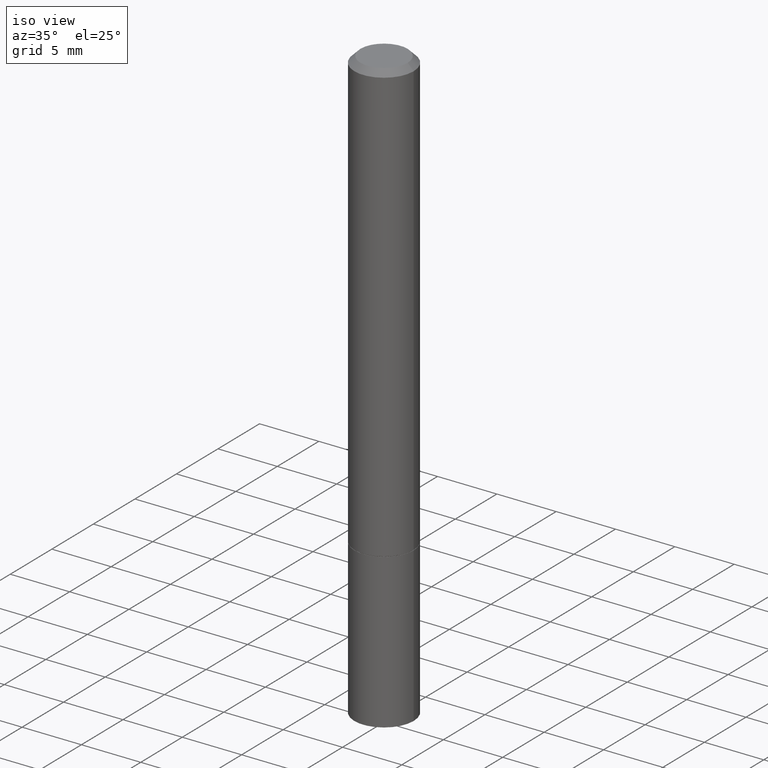
[diagram: clean part render]
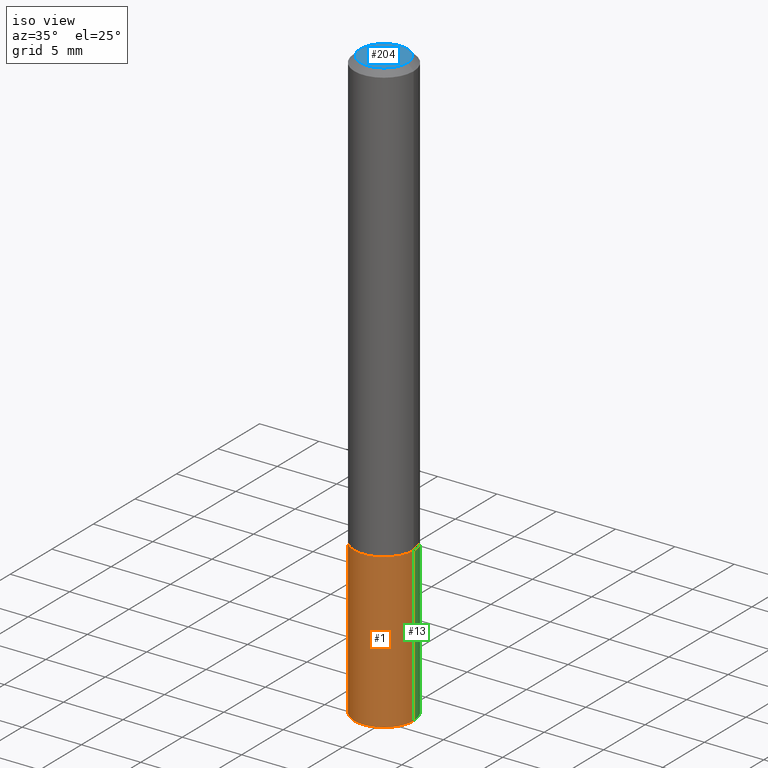
[diagram: same view with three faces highlighted in distinct colors, each labeled with its STEP entity id]
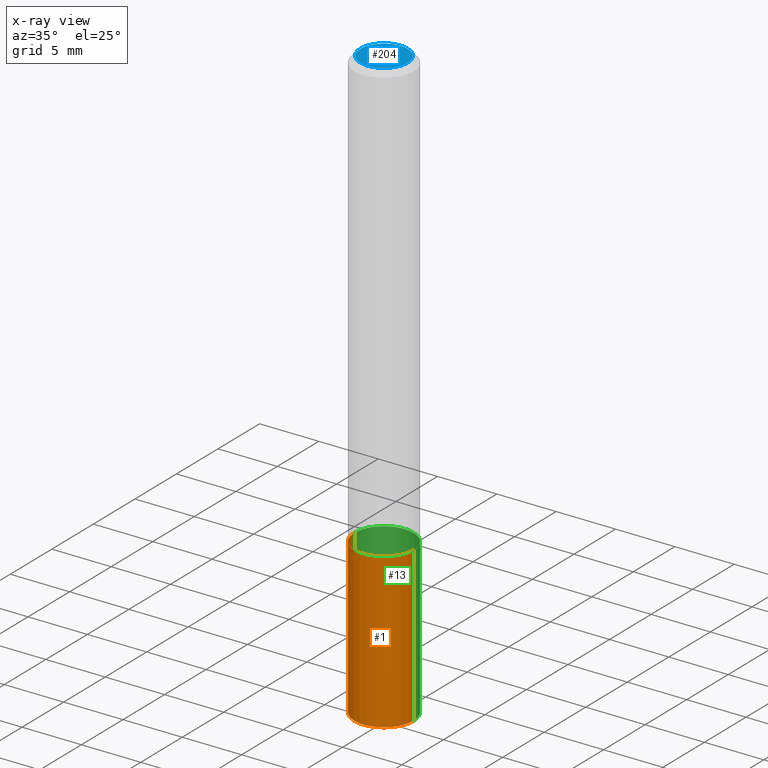
[diagram: x-ray of the same camera — body ghosted, the three highlighted faces saturated]
A machine part, iso view with three faces highlighted in distinct colors.
The next image is the same camera in x-ray (body ghosted, the three faces saturated) — at least one of them is partly hidden behind the body in this view.
Their STEP definitions:

[orange] entity #1 — the highlighted cylindrical surface (edge-blend (fillet) strip) has radius 2.5006 mm, axis along (-0, 0, 1).
#1 = ADVANCED_FACE ( 'NONE', ( #22 ), #363, .T. ) ;
#3 = CARTESIAN_POINT ( 'NONE',  ( 3.562314409969888915E-29, -5.086040866292811234E-15, -1.456700000000000106 ) ) ;
#8 = EDGE_CURVE ( 'NONE', #342, #327, #144, .T. ) ;
#14 = CARTESIAN_POINT ( 'NONE',  ( -0.09844999999999999585, 6.995293233558186035E-16, -4.842691596355954042E-30 ) ) ;
#20 = CARTESIAN_POINT ( 'NONE',  ( 0.09844999999999999585, -7.560453691130944267E-15, -1.968500000000000139 ) ) ;
#22 = FACE_OUTER_BOUND ( 'NONE', #283, .T. ) ;
#28 = AXIS2_PLACEMENT_3D ( 'NONE', #3, #280, #120 ) ;
#33 = AXIS2_PLACEMENT_3D ( 'NONE', #268, #239, #134 ) ;
#49 = VERTEX_POINT ( 'NONE', #123 ) ;
#69 = ORIENTED_EDGE ( 'NONE', *, *, #8, .T. ) ;
#88 = ORIENTED_EDGE ( 'NONE', *, *, #361, .F. ) ;
#116 = ORIENTED_EDGE ( 'NONE', *, *, #255, .T. ) ;
#120 = DIRECTION ( 'NONE',  ( 1.000000000000000000, -6.982962677686265922E-15, 0.000000000000000000 ) ) ;
#123 = CARTESIAN_POINT ( 'NONE',  ( -0.09844999999999999585, -5.279981617546952572E-15, -1.456700000000000106 ) ) ;
#134 = DIRECTION ( 'NONE',  ( 1.000000000000000000, -6.982962677686265922E-15, 0.000000000000000000 ) ) ;
#139 = VECTOR ( 'NONE', #187, 39.37007874015748143 ) ;
#143 = DIRECTION ( 'NONE',  ( -2.445468806185136597E-29, 3.491481338843145583E-15, 1.000000000000000000 ) ) ;
#144 = LINE ( 'NONE', #215, #139 ) ;
#163 = CARTESIAN_POINT ( 'NONE',  ( 0.09844999999999999585, -5.773513541911023795E-15, -1.456700000000000106 ) ) ;
#167 = CIRCLE ( 'NONE', #28, 0.09844999999999999585 ) ;
#175 = CIRCLE ( 'NONE', #33, 0.09844999999999999585 ) ;
#187 = DIRECTION ( 'NONE',  ( -2.445468806185136877E-29, 3.491481338843145188E-15, 1.000000000000000000 ) ) ;
#203 = LINE ( 'NONE', #14, #243 ) ;
#207 = VERTEX_POINT ( 'NONE', #325 ) ;
#215 = CARTESIAN_POINT ( 'NONE',  ( 0.09844999999999999585, -6.874726756182129545E-16, 4.800596035771099214E-30 ) ) ;
#239 = DIRECTION ( 'NONE',  ( -2.445468806185136597E-29, 3.491481338843145583E-15, 1.000000000000000000 ) ) ;
#243 = VECTOR ( 'NONE', #365, 39.37007874015748143 ) ;
#255 = EDGE_CURVE ( 'NONE', #207, #342, #175, .T. ) ;
#260 = AXIS2_PLACEMENT_3D ( 'NONE', #364, #143, #311 ) ;
#268 = CARTESIAN_POINT ( 'NONE',  ( 4.813905344975441835E-29, -6.872981015512731707E-15, -1.968500000000000139 ) ) ;
#280 = DIRECTION ( 'NONE',  ( -2.445468806185136597E-29, 3.491481338843145583E-15, 1.000000000000000000 ) ) ;
#281 = EDGE_CURVE ( 'NONE', #207, #49, #203, .T. ) ;
#283 = EDGE_LOOP ( 'NONE', ( #308, #116, #69, #88 ) ) ;
#308 = ORIENTED_EDGE ( 'NONE', *, *, #281, .F. ) ;
#311 = DIRECTION ( 'NONE',  ( 1.000000000000000000, -6.982962677686266711E-15, 4.876176775795936353E-29 ) ) ;
#325 = CARTESIAN_POINT ( 'NONE',  ( -0.09844999999999999585, -5.279981617546952572E-15, -1.968500000000000139 ) ) ;
#327 = VERTEX_POINT ( 'NONE', #163 ) ;
#342 = VERTEX_POINT ( 'NONE', #20 ) ;
#361 = EDGE_CURVE ( 'NONE', #49, #327, #167, .T. ) ;
#363 = CYLINDRICAL_SURFACE ( 'NONE', #260, 0.09844999999999999585 ) ;
#364 = CARTESIAN_POINT ( 'NONE',  ( 0.000000000000000000, 0.000000000000000000, 0.000000000000000000 ) ) ;
#365 = DIRECTION ( 'NONE',  ( -2.445468806185136877E-29, 3.491481338843145188E-15, 1.000000000000000000 ) ) ;

[blue] entity #204 — the highlighted planar face has unit normal (0, -0, -1).
#10 = CARTESIAN_POINT ( 'NONE',  ( 5.478134220644863581E-16, 0.07844999999999982543, -2.739067110322441651E-16 ) ) ;
#26 = VERTEX_POINT ( 'NONE', #153 ) ;
#40 = CARTESIAN_POINT ( 'NONE',  ( 0.000000000000000000, 0.000000000000000000, 0.000000000000000000 ) ) ;
#64 = AXIS2_PLACEMENT_3D ( 'NONE', #10, #333, #318 ) ;
#71 = CIRCLE ( 'NONE', #285, 0.07844999999999982543 ) ;
#79 = DIRECTION ( 'NONE',  ( -2.445468806185136597E-29, 3.491481338843145583E-15, 1.000000000000000000 ) ) ;
#109 = EDGE_LOOP ( 'NONE', ( #224, #330 ) ) ;
#111 = VERTEX_POINT ( 'NONE', #343 ) ;
#136 = FACE_OUTER_BOUND ( 'NONE', #109, .T. ) ;
#153 = CARTESIAN_POINT ( 'NONE',  ( -0.07844999999999982543, 5.827282354529176128E-16, -3.953055038153092165E-30 ) ) ;
#156 = CARTESIAN_POINT ( 'NONE',  ( 0.000000000000000000, 0.000000000000000000, 0.000000000000000000 ) ) ;
#176 = PLANE ( 'NONE',  #64 ) ;
#204 = ADVANCED_FACE ( 'NONE', ( #136 ), #176, .F. ) ;
#209 = CIRCLE ( 'NONE', #339, 0.07844999999999982543 ) ;
#224 = ORIENTED_EDGE ( 'NONE', *, *, #271, .T. ) ;
#236 = EDGE_CURVE ( 'NONE', #111, #26, #71, .T. ) ;
#237 = DIRECTION ( 'NONE',  ( -2.445468806185136597E-29, 3.491481338843145583E-15, 1.000000000000000000 ) ) ;
#264 = DIRECTION ( 'NONE',  ( 1.000000000000000000, -6.982962677686265922E-15, 4.876176775795936914E-29 ) ) ;
#271 = EDGE_CURVE ( 'NONE', #26, #111, #209, .T. ) ;
#285 = AXIS2_PLACEMENT_3D ( 'NONE', #156, #79, #264 ) ;
#318 = DIRECTION ( 'NONE',  ( -1.000000000000000000, 6.982962677686265922E-15, -4.876176775795935793E-29 ) ) ;
#330 = ORIENTED_EDGE ( 'NONE', *, *, #236, .T. ) ;
#333 = DIRECTION ( 'NONE',  ( 2.438088387897960049E-29, -3.491481338843145188E-15, -1.000000000000000000 ) ) ;
#339 = AXIS2_PLACEMENT_3D ( 'NONE', #40, #237, #356 ) ;
#343 = CARTESIAN_POINT ( 'NONE',  ( 0.07844999999999982543, -6.417258612913221441E-16, 4.159044147803931210E-30 ) ) ;
#356 = DIRECTION ( 'NONE',  ( 1.000000000000000000, -6.982962677686265922E-15, 4.876176775795936914E-29 ) ) ;

[green] entity #13 — the highlighted cylindrical surface (edge-blend (fillet) strip) has radius 2.5006 mm, axis along (-0, 0, 1).
#8 = EDGE_CURVE ( 'NONE', #342, #327, #144, .T. ) ;
#13 = ADVANCED_FACE ( 'NONE', ( #60 ), #288, .T. ) ;
#14 = CARTESIAN_POINT ( 'NONE',  ( -0.09844999999999999585, 6.995293233558186035E-16, -4.842691596355954042E-30 ) ) ;
#20 = CARTESIAN_POINT ( 'NONE',  ( 0.09844999999999999585, -7.560453691130944267E-15, -1.968500000000000139 ) ) ;
#42 = EDGE_CURVE ( 'NONE', #327, #49, #73, .T. ) ;
#49 = VERTEX_POINT ( 'NONE', #123 ) ;
#59 = CARTESIAN_POINT ( 'NONE',  ( 3.562314409969888915E-29, -5.086040866292811234E-15, -1.456700000000000106 ) ) ;
#60 = FACE_OUTER_BOUND ( 'NONE', #220, .T. ) ;
#72 = DIRECTION ( 'NONE',  ( -2.445468806185136597E-29, 3.491481338843145583E-15, 1.000000000000000000 ) ) ;
#73 = CIRCLE ( 'NONE', #286, 0.09844999999999999585 ) ;
#114 = AXIS2_PLACEMENT_3D ( 'NONE', #173, #72, #241 ) ;
#123 = CARTESIAN_POINT ( 'NONE',  ( -0.09844999999999999585, -5.279981617546952572E-15, -1.456700000000000106 ) ) ;
#137 = CARTESIAN_POINT ( 'NONE',  ( 0.000000000000000000, 0.000000000000000000, 0.000000000000000000 ) ) ;
#139 = VECTOR ( 'NONE', #187, 39.37007874015748143 ) ;
#141 = ORIENTED_EDGE ( 'NONE', *, *, #8, .F. ) ;
#144 = LINE ( 'NONE', #215, #139 ) ;
#163 = CARTESIAN_POINT ( 'NONE',  ( 0.09844999999999999585, -5.773513541911023795E-15, -1.456700000000000106 ) ) ;
#165 = ORIENTED_EDGE ( 'NONE', *, *, #223, .T. ) ;
#173 = CARTESIAN_POINT ( 'NONE',  ( 4.813905344975441835E-29, -6.872981015512731707E-15, -1.968500000000000139 ) ) ;
#187 = DIRECTION ( 'NONE',  ( -2.445468806185136877E-29, 3.491481338843145188E-15, 1.000000000000000000 ) ) ;
#196 = DIRECTION ( 'NONE',  ( -2.445468806185136597E-29, 3.491481338843145583E-15, 1.000000000000000000 ) ) ;
#203 = LINE ( 'NONE', #14, #243 ) ;
#207 = VERTEX_POINT ( 'NONE', #325 ) ;
#215 = CARTESIAN_POINT ( 'NONE',  ( 0.09844999999999999585, -6.874726756182129545E-16, 4.800596035771099214E-30 ) ) ;
#220 = EDGE_LOOP ( 'NONE', ( #165, #337, #334, #141 ) ) ;
#223 = EDGE_CURVE ( 'NONE', #342, #207, #265, .T. ) ;
#241 = DIRECTION ( 'NONE',  ( 1.000000000000000000, -6.982962677686265922E-15, 0.000000000000000000 ) ) ;
#242 = DIRECTION ( 'NONE',  ( -2.445468806185136597E-29, 3.491481338843145583E-15, 1.000000000000000000 ) ) ;
#243 = VECTOR ( 'NONE', #365, 39.37007874015748143 ) ;
#265 = CIRCLE ( 'NONE', #114, 0.09844999999999999585 ) ;
#281 = EDGE_CURVE ( 'NONE', #207, #49, #203, .T. ) ;
#286 = AXIS2_PLACEMENT_3D ( 'NONE', #59, #196, #322 ) ;
#288 = CYLINDRICAL_SURFACE ( 'NONE', #344, 0.09844999999999999585 ) ;
#322 = DIRECTION ( 'NONE',  ( 1.000000000000000000, -6.982962677686265922E-15, 0.000000000000000000 ) ) ;
#325 = CARTESIAN_POINT ( 'NONE',  ( -0.09844999999999999585, -5.279981617546952572E-15, -1.968500000000000139 ) ) ;
#327 = VERTEX_POINT ( 'NONE', #163 ) ;
#334 = ORIENTED_EDGE ( 'NONE', *, *, #42, .F. ) ;
#337 = ORIENTED_EDGE ( 'NONE', *, *, #281, .T. ) ;
#342 = VERTEX_POINT ( 'NONE', #20 ) ;
#344 = AXIS2_PLACEMENT_3D ( 'NONE', #137, #242, #358 ) ;
#358 = DIRECTION ( 'NONE',  ( 1.000000000000000000, -6.982962677686266711E-15, 4.876176775795936353E-29 ) ) ;
#365 = DIRECTION ( 'NONE',  ( -2.445468806185136877E-29, 3.491481338843145188E-15, 1.000000000000000000 ) ) ;